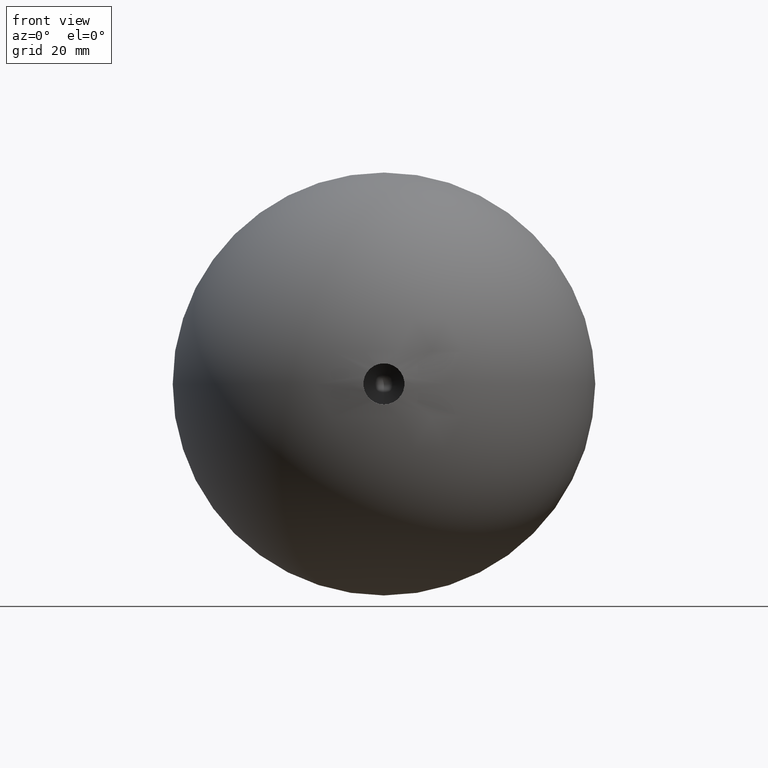
[diagram: clean part render]
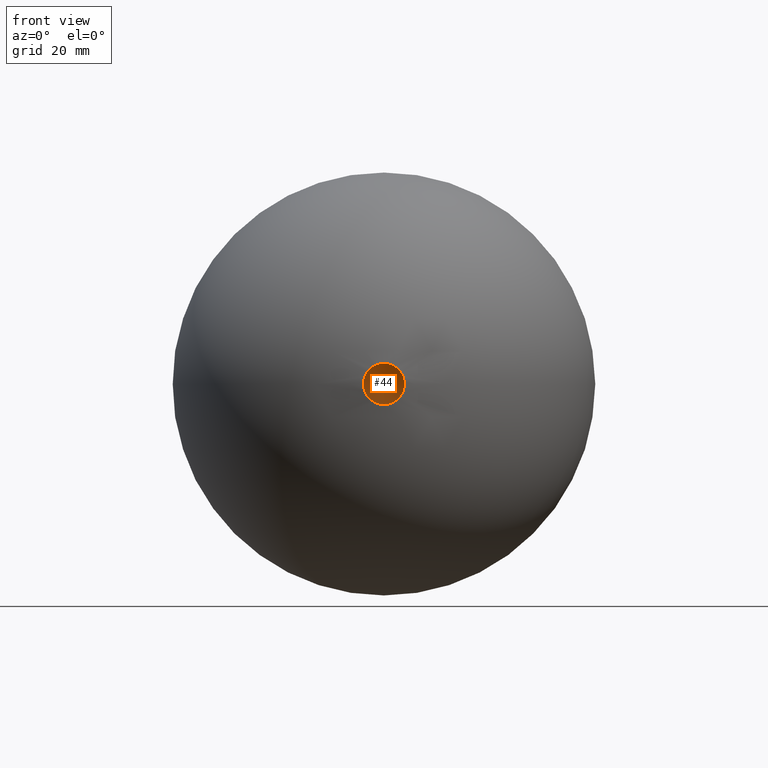
[diagram: same view with one face highlighted and labeled with its STEP entity id]
A machine part, front view. The second image highlights one B-rep face of the part: STEP entity #44.
In plain terms, the highlighted conical surface has half-angle 59 deg.
Its self-contained STEP definition (entity closure, byte-faithful):
#5 = CIRCLE ( 'NONE', #121, 3.399999999999985256 ) ;
#6 = CARTESIAN_POINT ( 'NONE',  ( 0.000000000000000000, 25.99999999999999645, 0.000000000000000000 ) ) ;
#11 = ORIENTED_EDGE ( 'NONE', *, *, #45, .T. ) ;
#32 = CARTESIAN_POINT ( 'NONE',  ( 0.000000000000000000, 25.99999999999999645, 0.000000000000000000 ) ) ;
#44 = ADVANCED_FACE ( 'NONE', ( #61 ), #103, .F. ) ;
#45 = EDGE_CURVE ( 'NONE', #123, #123, #5, .T. ) ;
#55 = DIRECTION ( 'NONE',  ( 0.000000000000000000, 0.000000000000000000, -1.000000000000000000 ) ) ;
#56 = CARTESIAN_POINT ( 'NONE',  ( 0.000000000000000000, 25.99999999999999645, -3.399999999999985256 ) ) ;
#61 = FACE_OUTER_BOUND ( 'NONE', #113, .T. ) ;
#75 = DIRECTION ( 'NONE',  ( 0.000000000000000000, 0.000000000000000000, -1.000000000000000000 ) ) ;
#95 = AXIS2_PLACEMENT_3D ( 'NONE', #32, #106, #55 ) ;
#103 = CONICAL_SURFACE ( 'NONE', #95, 3.399999999999985256, 1.029744258676652979 ) ;
#106 = DIRECTION ( 'NONE',  ( -0.000000000000000000, -1.000000000000000000, -0.000000000000000000 ) ) ;
#113 = EDGE_LOOP ( 'NONE', ( #11 ) ) ;
#121 = AXIS2_PLACEMENT_3D ( 'NONE', #6, #126, #75 ) ;
#123 = VERTEX_POINT ( 'NONE', #56 ) ;
#126 = DIRECTION ( 'NONE',  ( -0.000000000000000000, -1.000000000000000000, -0.000000000000000000 ) ) ;